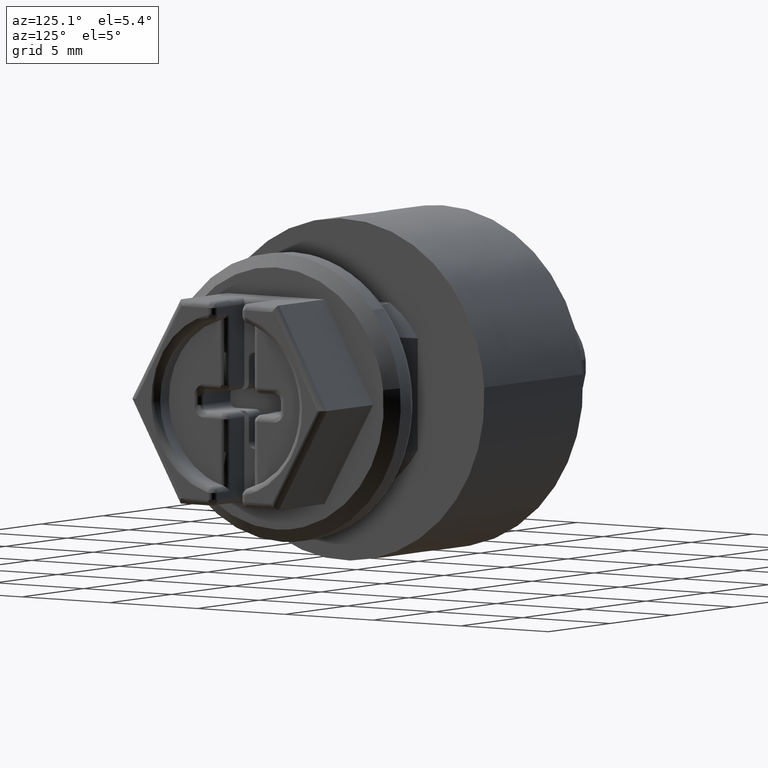
[diagram: clean part render]
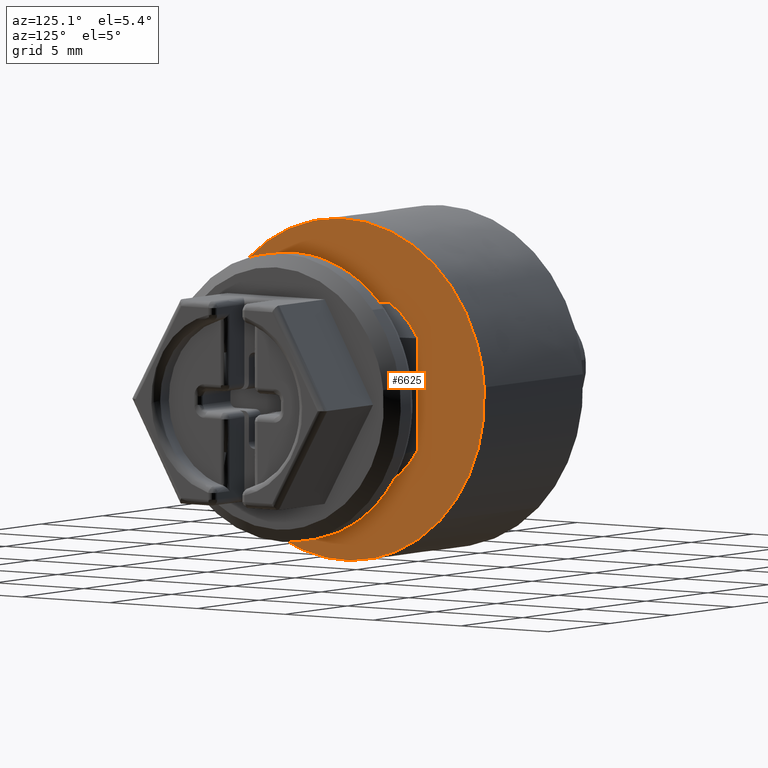
[diagram: same view with one face highlighted and labeled with its STEP entity id]
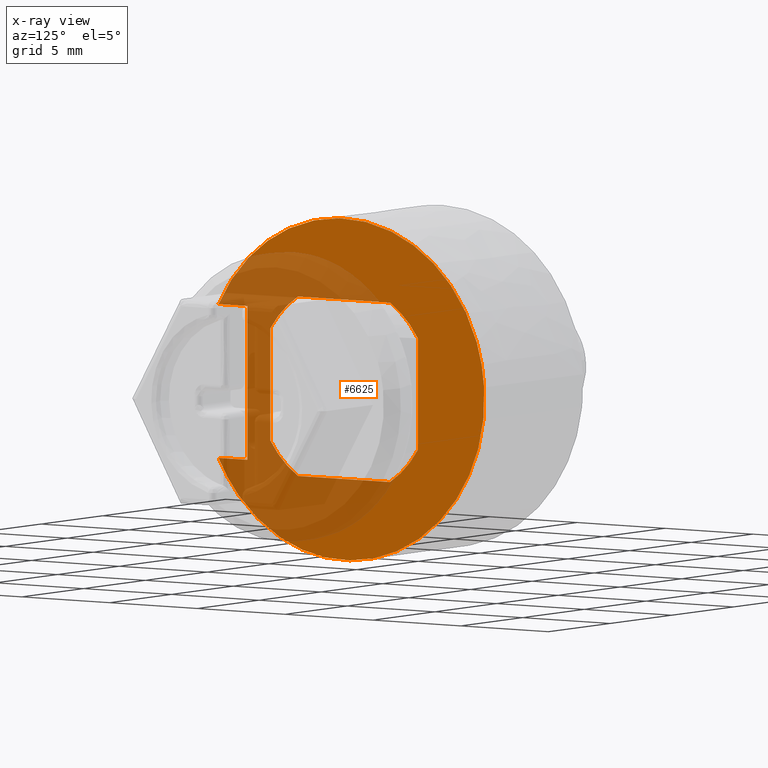
[diagram: x-ray of the same camera — body ghosted, the highlighted face saturated]
A machine part, auxiliary view. The second image highlights one B-rep face of the part: STEP entity #6625.
The next image is the same camera in x-ray: the body ghosted, the highlighted face saturated — about 40% of this face is hidden behind the body in this view.
In plain terms, the highlighted face is a freeform B-spline surface patch.
Its self-contained STEP definition (entity closure, byte-faithful):
#5442=CARTESIAN_POINT('',(16.000001096102999,5.462638049344776,-5.844620742316884));
#5443=VERTEX_POINT('',#5442);
#5449=CARTESIAN_POINT('',(16.000001096102999,-7.144227209851530,-3.600003285233370));
#5450=VERTEX_POINT('',#5449);
#5451=CARTESIAN_POINT('',(16.000001096103002,5.462638049344776,-5.844620742316884));
#5452=CARTESIAN_POINT('',(16.000001096102999,3.913330771951971,-7.292671053321277));
#5453=CARTESIAN_POINT('',(16.000001096102999,1.850161917297234,-7.783116789529569));
#5454=CARTESIAN_POINT('',(16.000001096103002,-4.299679300865583,-9.245024959091730));
#5455=CARTESIAN_POINT('',(16.000001096102999,-7.144227209851529,-3.600003285233374));
#5463=(BOUNDED_CURVE()B_SPLINE_CURVE(2,(#5451,#5452,#5453,#5454,#5455),.UNSPECIFIED.,.F.,.U.)B_SPLINE_CURVE_WITH_KNOTS((3,2,3),(0.652120590839826,0.750000000000000,1.0),.UNSPECIFIED.)CURVE()GEOMETRIC_REPRESENTATION_ITEM()RATIONAL_B_SPLINE_CURVE((0.897381296381285,0.915676517679018,1.0,0.784624051563821,1.0))REPRESENTATION_ITEM(''));
#5464=EDGE_CURVE('',#5443,#5450,#5463,.T.);
#5542=CARTESIAN_POINT('',(16.000001096102999,-7.144230348405500,3.599997056748165));
#5543=VERTEX_POINT('',#5542);
#5549=CARTESIAN_POINT('',(16.000001096102999,7.982814031143709,0.524105164864598));
#5550=VERTEX_POINT('',#5549);
#5551=CARTESIAN_POINT('',(16.000001096102999,-7.144230348405522,3.599997056748181));
#5552=CARTESIAN_POINT('',(16.000001096103002,-4.299687360866344,9.245021210539607));
#5553=CARTESIAN_POINT('',(16.000001096102999,1.850155131815666,7.783118402535722));
#5554=CARTESIAN_POINT('',(16.000001096102995,7.595902787283778,6.417274538793556));
#5555=CARTESIAN_POINT('',(16.000001096102999,7.982814031143709,0.524105164864598));
#5563=(BOUNDED_CURVE()B_SPLINE_CURVE(2,(#5551,#5552,#5553,#5554,#5555),.UNSPECIFIED.,.F.,.U.)B_SPLINE_CURVE_WITH_KNOTS((3,2,3),(0.0,0.250000000000000,0.486925925487701),.UNSPECIFIED.)CURVE()GEOMETRIC_REPRESENTATION_ITEM()RATIONAL_B_SPLINE_CURVE((1.0,0.784624051563821,1.0,0.795887416355868,0.978651334980310))REPRESENTATION_ITEM(''));
#5564=EDGE_CURVE('',#5543,#5550,#5563,.T.);
#5636=CARTESIAN_POINT('',(16.000001096102999,7.982814031143709,0.524105164864598));
#5637=CARTESIAN_POINT('',(16.000001096102995,8.000000265625380,0.262336109807630));
#5638=CARTESIAN_POINT('',(16.000001096102999,8.000000379978859,0.000003487282211));
#5639=CARTESIAN_POINT('',(16.000001096103002,8.000001893935741,-3.473089569706048));
#5640=CARTESIAN_POINT('',(16.000001096103002,5.462638049344776,-5.844620742316884));
#5648=(BOUNDED_CURVE()B_SPLINE_CURVE(2,(#5636,#5637,#5638,#5639,#5640),.UNSPECIFIED.,.F.,.U.)B_SPLINE_CURVE_WITH_KNOTS((3,2,3),(0.486925925487701,0.500000000000000,0.652120590839826),.UNSPECIFIED.)CURVE()GEOMETRIC_REPRESENTATION_ITEM()RATIONAL_B_SPLINE_CURVE((0.978651334980310,0.988736635207953,1.0,0.868947533884803,0.897381296381285))REPRESENTATION_ITEM(''));
#5649=EDGE_CURVE('',#5550,#5443,#5648,.T.);
#5660=CARTESIAN_POINT('',(16.000001096102999,-4.199993971004190,2.619640493728535));
#5661=VERTEX_POINT('',#5660);
#5662=CARTESIAN_POINT('',(16.000001096102999,-4.199996985502095,-2.619639098301165));
#5663=VERTEX_POINT('',#5662);
#5664=CARTESIAN_POINT('',(16.000001096102999,-4.199993971004190,2.619640493728535));
#5665=CARTESIAN_POINT('',(16.000001096102999,-4.199996985502095,-2.619639098301165));
#5666=QUASI_UNIFORM_CURVE('',1,(#5664,#5665),.UNSPECIFIED.,.F.,.U.);
#5667=EDGE_CURVE('',#5661,#5663,#5666,.T.);
#5773=CARTESIAN_POINT('',(16.000001096102999,2.619637379485895,4.199997085246750));
#5774=VERTEX_POINT('',#5773);
#5788=CARTESIAN_POINT('',(16.000001096102999,-2.619637379485895,4.199997085246750));
#5789=VERTEX_POINT('',#5788);
#5790=CARTESIAN_POINT('',(16.000001096102999,2.619637379485895,4.199997085246750));
#5791=CARTESIAN_POINT('',(16.000001096102999,-2.619637379485895,4.199997085246750));
#5792=QUASI_UNIFORM_CURVE('',1,(#5790,#5791),.UNSPECIFIED.,.F.,.U.);
#5793=EDGE_CURVE('',#5774,#5789,#5792,.T.);
#5949=CARTESIAN_POINT('',(16.000001096102999,4.200000000000000,2.619640493728505));
#5950=VERTEX_POINT('',#5949);
#5956=CARTESIAN_POINT('',(16.000001096102999,4.200000000000000,2.619640493728505));
#5957=CARTESIAN_POINT('',(16.000001096102999,3.592932508322423,3.592932490035804));
#5958=CARTESIAN_POINT('',(16.000001096102999,2.619637379485895,4.199997085246750));
#5966=(BOUNDED_CURVE()B_SPLINE_CURVE(2,(#5956,#5957,#5958),.UNSPECIFIED.,.F.,.U.)CURVE()GEOMETRIC_REPRESENTATION_ITEM()QUASI_UNIFORM_CURVE()RATIONAL_B_SPLINE_CURVE((1.0,0.974184282105310,1.0))REPRESENTATION_ITEM(''));
#5967=EDGE_CURVE('',#5950,#5774,#5966,.T.);
#5980=CARTESIAN_POINT('',(16.000001096102999,4.200000000000000,-2.619634265243390));
#5981=VERTEX_POINT('',#5980);
#5987=CARTESIAN_POINT('',(16.000001096102999,4.200000000000000,-2.619634265243390));
#5988=CARTESIAN_POINT('',(16.000001096102999,4.200000000000000,2.619640493728505));
#5989=QUASI_UNIFORM_CURVE('',1,(#5987,#5988),.UNSPECIFIED.,.F.,.U.);
#5990=EDGE_CURVE('',#5981,#5950,#5989,.T.);
#6013=CARTESIAN_POINT('',(16.000001096102999,2.619637379485945,-4.199996885757440));
#6014=VERTEX_POINT('',#6013);
#6020=CARTESIAN_POINT('',(16.000001096102999,2.619637379485946,-4.199996885757440));
#6021=CARTESIAN_POINT('',(16.000001096102999,3.592932972316917,-3.592929858074359));
#6022=CARTESIAN_POINT('',(16.000001096102999,4.199999999999999,-2.619634265243390));
#6030=(BOUNDED_CURVE()B_SPLINE_CURVE(2,(#6020,#6021,#6022),.UNSPECIFIED.,.F.,.U.)CURVE()GEOMETRIC_REPRESENTATION_ITEM()QUASI_UNIFORM_CURVE()RATIONAL_B_SPLINE_CURVE((1.0,0.974184209347024,1.0))REPRESENTATION_ITEM(''));
#6031=EDGE_CURVE('',#6014,#5981,#6030,.T.);
#6043=CARTESIAN_POINT('',(16.000001096102999,-2.619637379485950,-4.199996885757440));
#6044=VERTEX_POINT('',#6043);
#6050=CARTESIAN_POINT('',(16.000001096102999,-2.619637379485950,-4.199996885757440));
#6051=CARTESIAN_POINT('',(16.000001096102999,2.619637379485945,-4.199996885757440));
#6052=QUASI_UNIFORM_CURVE('',1,(#6050,#6051),.UNSPECIFIED.,.F.,.U.);
#6053=EDGE_CURVE('',#6044,#6014,#6052,.T.);
#6072=CARTESIAN_POINT('',(16.000001096102999,-2.619637379485895,4.199997085246750));
#6073=CARTESIAN_POINT('',(16.000001096102999,-3.592928911799525,3.592932026042127));
#6074=CARTESIAN_POINT('',(16.000001096102999,-4.199993971004190,2.619640493728535));
#6082=(BOUNDED_CURVE()B_SPLINE_CURVE(2,(#6072,#6073,#6074),.UNSPECIFIED.,.F.,.U.)CURVE()GEOMETRIC_REPRESENTATION_ITEM()QUASI_UNIFORM_CURVE()RATIONAL_B_SPLINE_CURVE((1.0,0.974184354863497,1.0))REPRESENTATION_ITEM(''));
#6083=EDGE_CURVE('',#5789,#5661,#6082,.T.);
#6098=CARTESIAN_POINT('',(16.000001096102999,-5.500000379979660,3.599997056748165));
#6099=VERTEX_POINT('',#6098);
#6124=CARTESIAN_POINT('',(16.000001096102999,-5.500000379979610,-3.600003285234720));
#6125=VERTEX_POINT('',#6124);
#6131=CARTESIAN_POINT('',(16.000001096102999,-5.500000379979660,3.599997056748165));
#6132=CARTESIAN_POINT('',(16.000001096102999,-5.500000379979610,-3.600003285234720));
#6133=QUASI_UNIFORM_CURVE('',1,(#6131,#6132),.UNSPECIFIED.,.F.,.U.);
#6134=EDGE_CURVE('',#6099,#6125,#6133,.T.);
#6177=CARTESIAN_POINT('',(16.000001096102999,-5.500000379979610,-3.600003285234720));
#6178=CARTESIAN_POINT('',(16.000001096102999,-7.144227209851530,-3.600003285233370));
#6179=QUASI_UNIFORM_CURVE('',1,(#6177,#6178),.UNSPECIFIED.,.F.,.U.);
#6180=EDGE_CURVE('',#6125,#5450,#6179,.T.);
#6195=CARTESIAN_POINT('',(16.000001096102999,-5.500000379979660,3.599997056748165));
#6196=CARTESIAN_POINT('',(16.000001096102999,-7.144230348405500,3.599997056748165));
#6197=QUASI_UNIFORM_CURVE('',1,(#6195,#6196),.UNSPECIFIED.,.F.,.U.);
#6198=EDGE_CURVE('',#6099,#5543,#6197,.T.);
#6590=CARTESIAN_POINT('',(16.000001096102999,8.756273133099628,8.796199590067067));
#6591=CARTESIAN_POINT('',(16.000001096102999,-7.900676413492722,8.796199590067067));
#6592=CARTESIAN_POINT('',(16.000001096102999,8.756273133099628,-8.798690024895603));
#6593=CARTESIAN_POINT('',(16.000001096102999,-7.900676413492722,-8.798690024895603));
#6594=B_SPLINE_SURFACE_WITH_KNOTS('',1,1,((#6590,#6592),(#6591,#6593)),.UNSPECIFIED.,.F.,.F.,.U.,(2,2),(2,2),(0.0,16.656949546592351),(0.0,17.594889614962671),.UNSPECIFIED.);
#6595=ORIENTED_EDGE('',*,*,#6198,.F.);
#6596=ORIENTED_EDGE('',*,*,#6134,.T.);
#6597=ORIENTED_EDGE('',*,*,#6180,.T.);
#6598=ORIENTED_EDGE('',*,*,#5464,.F.);
#6599=ORIENTED_EDGE('',*,*,#5649,.F.);
#6600=ORIENTED_EDGE('',*,*,#5564,.F.);
#6601=EDGE_LOOP('',(#6595,#6596,#6597,#6598,#6599,#6600));
#6602=FACE_OUTER_BOUND('',#6601,.T.);
#6603=CARTESIAN_POINT('',(16.000001096102999,-4.199996985502095,-2.619639098301165));
#6604=CARTESIAN_POINT('',(16.000001096103002,-3.592930426013969,-3.592931446262543));
#6605=CARTESIAN_POINT('',(16.000001096102999,-2.619637379485950,-4.199996885757438));
#6613=(BOUNDED_CURVE()B_SPLINE_CURVE(2,(#6603,#6604,#6605),.UNSPECIFIED.,.F.,.U.)CURVE()GEOMETRIC_REPRESENTATION_ITEM()QUASI_UNIFORM_CURVE()RATIONAL_B_SPLINE_CURVE((1.0,0.974184339238014,1.0))REPRESENTATION_ITEM(''));
#6614=EDGE_CURVE('',#5663,#6044,#6613,.T.);
#6615=ORIENTED_EDGE('',*,*,#6614,.F.);
#6616=ORIENTED_EDGE('',*,*,#5667,.F.);
#6617=ORIENTED_EDGE('',*,*,#6083,.F.);
#6618=ORIENTED_EDGE('',*,*,#5793,.F.);
#6619=ORIENTED_EDGE('',*,*,#5967,.F.);
#6620=ORIENTED_EDGE('',*,*,#5990,.F.);
#6621=ORIENTED_EDGE('',*,*,#6031,.F.);
#6622=ORIENTED_EDGE('',*,*,#6053,.F.);
#6623=EDGE_LOOP('',(#6615,#6616,#6617,#6618,#6619,#6620,#6621,#6622));
#6624=FACE_BOUND('',#6623,.T.);
#6625=ADVANCED_FACE('',(#6602,#6624),#6594,.T.);